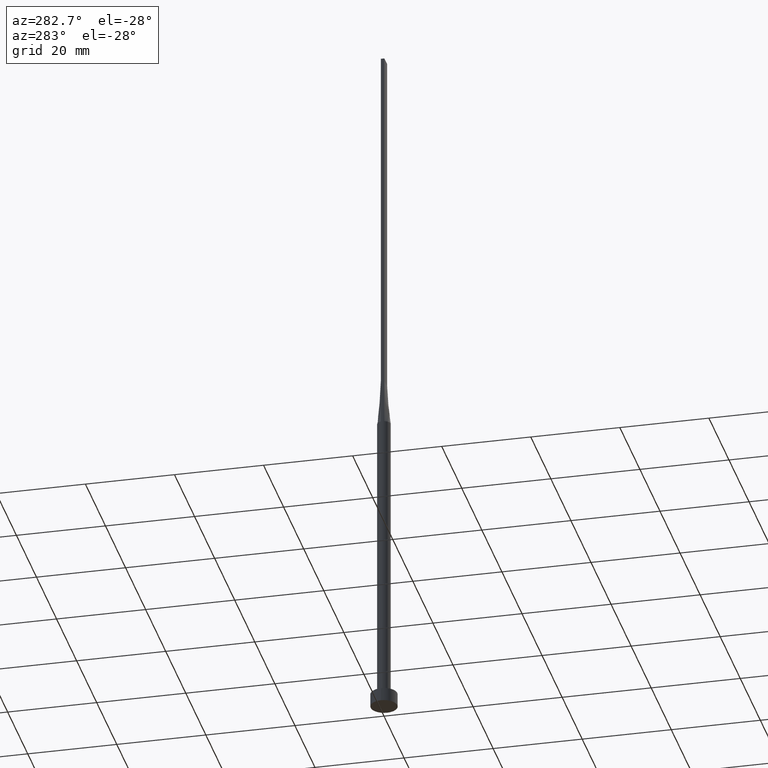
[diagram: clean part render]
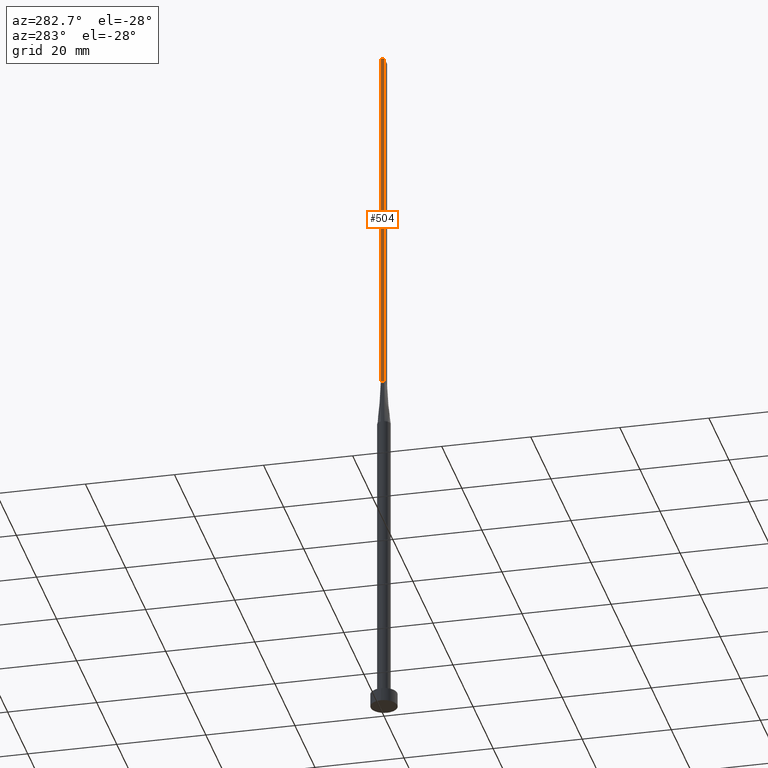
[diagram: same view with one face highlighted and labeled with its STEP entity id]
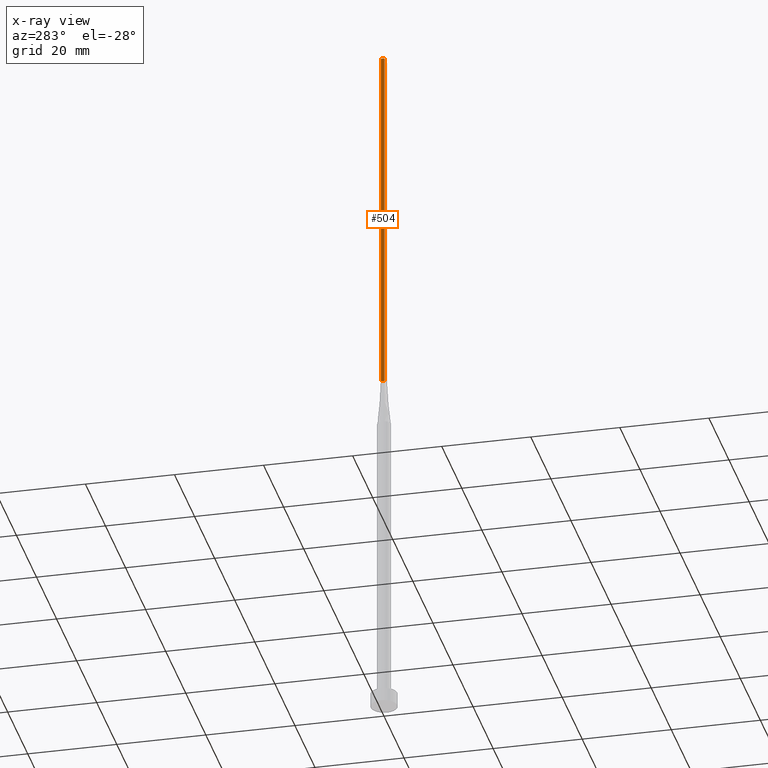
[diagram: x-ray of the same camera — body ghosted, the highlighted face saturated]
A machine part, auxiliary view. The second image highlights one B-rep face of the part: STEP entity #504.
The next image is the same camera in x-ray: the body ghosted, the highlighted face saturated — about 0% of this face is hidden behind the body in this view.
In plain terms, the highlighted planar face has unit normal (1, -0, 0).
Its self-contained STEP definition (entity closure, byte-faithful):
#16 = VECTOR ( 'NONE', #28, 1000.000000000000000 ) ;
#24 = PLANE ( 'NONE',  #120 ) ;
#28 = DIRECTION ( 'NONE',  ( -0.000000000000000000, -0.000000000000000000, -1.000000000000000000 ) ) ;
#45 = EDGE_CURVE ( 'NONE', #182, #467, #205, .T. ) ;
#50 = VECTOR ( 'NONE', #402, 1000.000000000000000 ) ;
#62 = CARTESIAN_POINT ( 'NONE',  ( -1.399999999999999689, 0.4000000000000002442, 160.0000000000000000 ) ) ;
#93 = ORIENTED_EDGE ( 'NONE', *, *, #217, .F. ) ;
#103 = CARTESIAN_POINT ( 'NONE',  ( -1.399999999999999911, -0.3999999999999996336, 80.00000000000000000 ) ) ;
#120 = AXIS2_PLACEMENT_3D ( 'NONE', #62, #441, #235 ) ;
#150 = CARTESIAN_POINT ( 'NONE',  ( -1.399999999999999911, -0.3999999999999996336, 160.0000000000000000 ) ) ;
#182 = VERTEX_POINT ( 'NONE', #393 ) ;
#183 = VERTEX_POINT ( 'NONE', #404 ) ;
#188 = VECTOR ( 'NONE', #570, 1000.000000000000000 ) ;
#194 = LINE ( 'NONE', #509, #578 ) ;
#197 = LINE ( 'NONE', #297, #16 ) ;
#205 = LINE ( 'NONE', #400, #188 ) ;
#217 = EDGE_CURVE ( 'NONE', #412, #467, #561, .T. ) ;
#235 = DIRECTION ( 'NONE',  ( 2.710505431213761578E-16, 1.000000000000000000, 0.000000000000000000 ) ) ;
#297 = CARTESIAN_POINT ( 'NONE',  ( -1.399999999999999689, 0.4000000000000002442, 160.0000000000000000 ) ) ;
#335 = EDGE_CURVE ( 'NONE', #183, #412, #194, .T. ) ;
#350 = ORIENTED_EDGE ( 'NONE', *, *, #335, .F. ) ;
#393 = CARTESIAN_POINT ( 'NONE',  ( -1.399999999999999689, 0.4000000000000002442, 80.00000000000000000 ) ) ;
#395 = EDGE_LOOP ( 'NONE', ( #546, #93, #350, #414 ) ) ;
#400 = CARTESIAN_POINT ( 'NONE',  ( -1.399999999999999689, 0.4000000000000002442, 80.00000000000000000 ) ) ;
#402 = DIRECTION ( 'NONE',  ( -0.000000000000000000, -0.000000000000000000, -1.000000000000000000 ) ) ;
#404 = CARTESIAN_POINT ( 'NONE',  ( -1.399999999999999689, 0.4000000000000002442, 160.0000000000000000 ) ) ;
#412 = VERTEX_POINT ( 'NONE', #511 ) ;
#414 = ORIENTED_EDGE ( 'NONE', *, *, #459, .T. ) ;
#441 = DIRECTION ( 'NONE',  ( 1.000000000000000000, -2.710505431213761578E-16, 0.000000000000000000 ) ) ;
#459 = EDGE_CURVE ( 'NONE', #183, #182, #197, .T. ) ;
#466 = DIRECTION ( 'NONE',  ( -2.710505431213761578E-16, -1.000000000000000000, 0.000000000000000000 ) ) ;
#467 = VERTEX_POINT ( 'NONE', #103 ) ;
#473 = FACE_OUTER_BOUND ( 'NONE', #395, .T. ) ;
#504 = ADVANCED_FACE ( 'NONE', ( #473 ), #24, .F. ) ;
#509 = CARTESIAN_POINT ( 'NONE',  ( -1.399999999999999689, 0.4000000000000002442, 160.0000000000000000 ) ) ;
#511 = CARTESIAN_POINT ( 'NONE',  ( -1.399999999999999911, -0.3999999999999996336, 160.0000000000000000 ) ) ;
#546 = ORIENTED_EDGE ( 'NONE', *, *, #45, .T. ) ;
#561 = LINE ( 'NONE', #150, #50 ) ;
#570 = DIRECTION ( 'NONE',  ( -2.710505431213761578E-16, -1.000000000000000000, 0.000000000000000000 ) ) ;
#578 = VECTOR ( 'NONE', #466, 1000.000000000000000 ) ;